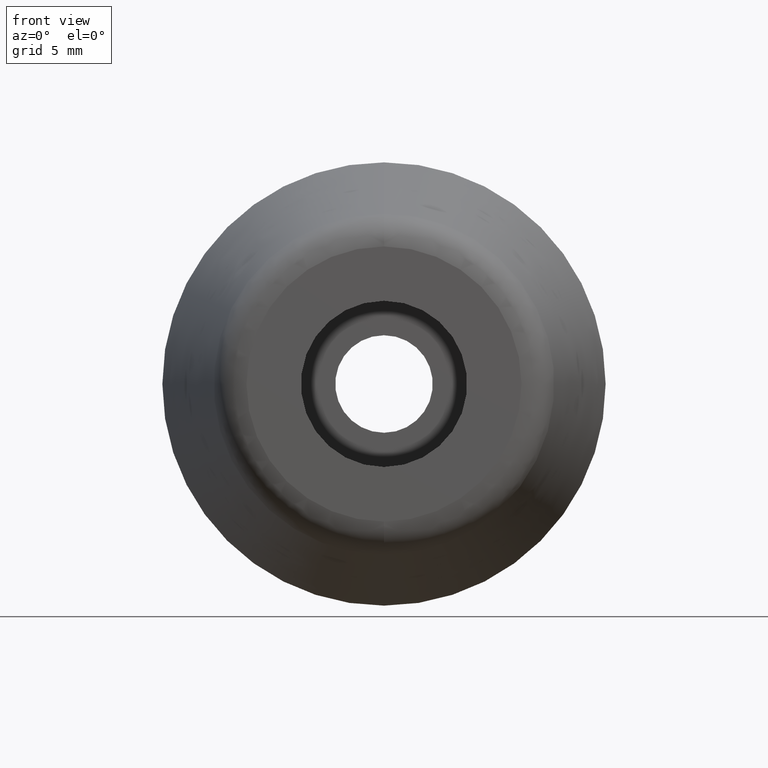
[diagram: clean part render]
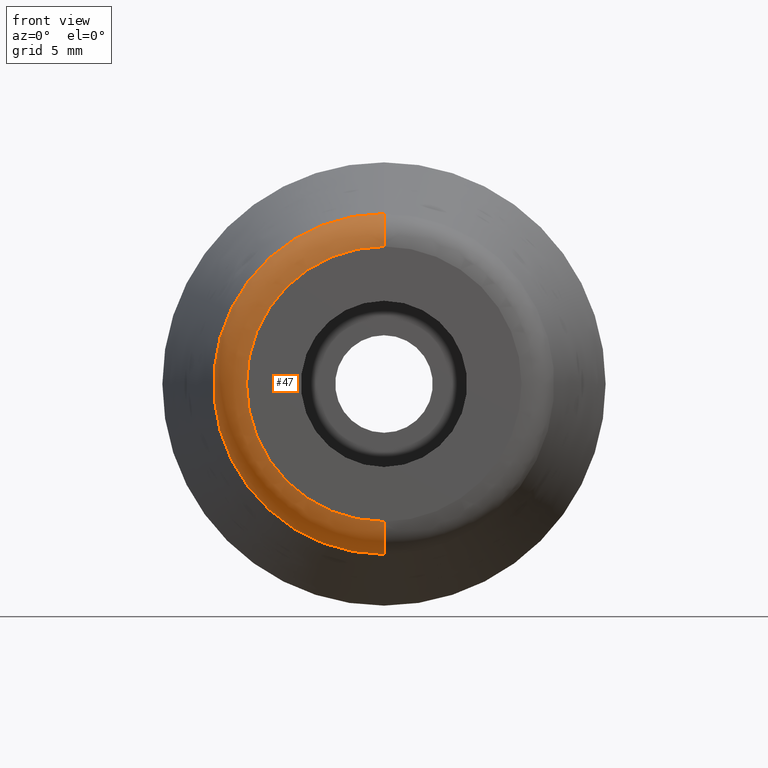
[diagram: same view with one face highlighted and labeled with its STEP entity id]
A machine part, front view. The second image highlights one B-rep face of the part: STEP entity #47.
In plain terms, the highlighted face is a freeform B-spline surface patch.
Its self-contained STEP definition (entity closure, byte-faithful):
#47=ADVANCED_FACE('',(#125),#124,.T.);
#124=( BOUNDED_SURFACE() B_SPLINE_SURFACE( 2,2,((#202,#203,#204,#205,#206),(#207,#208,#209,#210,#211),(#212,#213,#214,#215,#216),(#217,#218,#219,#220,#221),(#222,#223,#224,#225,#226)), .UNSPECIFIED.,.F.,.F.,.F.) B_SPLINE_SURFACE_WITH_KNOTS((3,2,3),(3,2,3),(0.00000000000E+00,5.00000000000E-01,1.00000000000E+00),(0.00000000000E+00,5.00000000000E-01,1.00000000000E+00), .UNSPECIFIED. ) GEOMETRIC_REPRESENTATION_ITEM() RATIONAL_B_SPLINE_SURFACE(((1.00000000000E+00,7.56800498974E-01,1.00000000000E+00,7.56800498974E-01,1.00000000000E+00),(7.07106781187E-01,5.35138764830E-01,7.07106781187E-01,5.35138764830E-01,7.07106781187E-01),(1.00000000000E+00,7.56800498974E-01,1.00000000000E+00,7.56800498974E-01,1.00000000000E+00),(7.07106781187E-01,5.35138764830E-01,7.07106781187E-01,5.35138764830E-01,7.07106781187E-01),(1.00000000000E+00,7.56800498974E-01,1.00000000000E+00,7.56800498974E-01,1.00000000000E+00))) REPRESENTATION_ITEM('') SURFACE() );
#125=FACE_OUTER_BOUND('',#227,.T.);
#202=CARTESIAN_POINT('',(9.46680299883E-15,-1.57182409857E+01,7.68849397268E+00));
#203=CARTESIAN_POINT('',(9.48988609049E-15,-1.70000000000E+01,7.50000000000E+00));
#204=CARTESIAN_POINT('',(9.64853932134E-15,-1.70000000000E+01,6.20445526964E+00));
#205=CARTESIAN_POINT('',(9.80719255219E-15,-1.70000000000E+01,4.90891053928E+00));
#206=CARTESIAN_POINT('',(9.83027564385E-15,-1.57182409857E+01,4.72041656659E+00));
#207=CARTESIAN_POINT('',(-7.68849397268E+00,-1.57182409857E+01,7.68849397268E+00));
#208=CARTESIAN_POINT('',(-7.50000000000E+00,-1.70000000000E+01,7.50000000000E+00));
#209=CARTESIAN_POINT('',(-6.20445526964E+00,-1.70000000000E+01,6.20445526964E+00));
#210=CARTESIAN_POINT('',(-4.90891053928E+00,-1.70000000000E+01,4.90891053928E+00));
#211=CARTESIAN_POINT('',(-4.72041656659E+00,-1.57182409857E+01,4.72041656659E+00));
#212=CARTESIAN_POINT('',(-7.68849397268E+00,-1.57182409857E+01,-4.70753380332E-16));
#213=CARTESIAN_POINT('',(-7.50000000000E+00,-1.70000000000E+01,-4.59212215687E-16));
#214=CARTESIAN_POINT('',(-6.20445526964E+00,-1.70000000000E+01,-3.79888220200E-16));
#215=CARTESIAN_POINT('',(-4.90891053928E+00,-1.70000000000E+01,-3.00564224713E-16));
#216=CARTESIAN_POINT('',(-4.72041656659E+00,-1.57182409857E+01,-2.89023060068E-16));
#217=CARTESIAN_POINT('',(-7.68849397268E+00,-1.57182409857E+01,-7.68849397268E+00));
#218=CARTESIAN_POINT('',(-7.50000000000E+00,-1.70000000000E+01,-7.50000000000E+00));
#219=CARTESIAN_POINT('',(-6.20445526964E+00,-1.70000000000E+01,-6.20445526964E+00));
#220=CARTESIAN_POINT('',(-4.90891053928E+00,-1.70000000000E+01,-4.90891053928E+00));
#221=CARTESIAN_POINT('',(-4.72041656659E+00,-1.57182409857E+01,-4.72041656659E+00));
#222=CARTESIAN_POINT('',(1.04083097595E-14,-1.57182409857E+01,-7.68849397268E+00));
#223=CARTESIAN_POINT('',(1.04083105219E-14,-1.70000000000E+01,-7.50000000000E+00));
#224=CARTESIAN_POINT('',(1.04083157617E-14,-1.70000000000E+01,-6.20445526964E+00));
#225=CARTESIAN_POINT('',(1.04083210016E-14,-1.70000000000E+01,-4.90891053928E+00));
#226=CARTESIAN_POINT('',(1.04083217640E-14,-1.57182409857E+01,-4.72041656659E+00));
#227=EDGE_LOOP('',(#304,#305,#306,#307));
#304=ORIENTED_EDGE('',*,*,#325,.F.);
#305=ORIENTED_EDGE('',*,*,#336,.F.);
#306=ORIENTED_EDGE('',*,*,#337,.T.);
#307=ORIENTED_EDGE('',*,*,#338,.T.);
#325=EDGE_CURVE('',#371,#370,#378,.T.);
#336=EDGE_CURVE('',#450,#371,#451,.T.);
#337=EDGE_CURVE('',#450,#457,#458,.T.);
#338=EDGE_CURVE('',#457,#370,#464,.T.);
#370=VERTEX_POINT('',#508);
#371=VERTEX_POINT('',#509);
#378=CIRCLE('',#517,6.20445526964E+00);
#450=VERTEX_POINT('',#556);
#451=(BOUNDED_CURVE() B_SPLINE_CURVE(2,(#557,#558,#559),.UNSPECIFIED.,.F.,.F.) B_SPLINE_CURVE_WITH_KNOTS((3,3),(0.00000000000E+00,5.00000000000E-01),.UNSPECIFIED.) CURVE() GEOMETRIC_REPRESENTATION_ITEM() RATIONAL_B_SPLINE_CURVE((1.00000000000E+00,7.56800498974E-01,1.00000000000E+00)) REPRESENTATION_ITEM('') );
#457=VERTEX_POINT('',#560);
#458=CIRCLE('',#564,7.68849397268E+00);
#464=(BOUNDED_CURVE() B_SPLINE_CURVE(3,(#565,#566,#567,#568,#569),.UNSPECIFIED.,.F.,.F.) B_SPLINE_CURVE_WITH_KNOTS((4,1,4),(0.00000000000E+00,2.50000002718E-01,5.00000004832E-01),.UNSPECIFIED.) CURVE() GEOMETRIC_REPRESENTATION_ITEM() RATIONAL_B_SPLINE_CURVE((1.00000000000E+00,1.00000000000E+00,1.00000000000E+00,1.00000000000E+00,1.00000000000E+00)) REPRESENTATION_ITEM('') );
#508=CARTESIAN_POINT('',(1.06581410364E-14,-1.70000000000E+01,-6.20445526964E+00));
#509=CARTESIAN_POINT('',(1.03620815632E-14,-1.70000000000E+01,6.20445526964E+00));
#514=CARTESIAN_POINT('',(1.06581410364E-14,-1.70000000000E+01,0.00000000000E+00));
#515=DIRECTION('',(0.00000000000E+00,-1.00000000000E+00,-0.00000000000E+00));
#516=DIRECTION('',(-1.22460635382E-16,0.00000000000E+00,-1.00000000000E+00));
#517=AXIS2_PLACEMENT_3D('',#514,#515,#516);
#556=CARTESIAN_POINT('',(1.15463194561E-14,-1.57182409857E+01,7.68849397268E+00));
#557=CARTESIAN_POINT('',(9.46680299883E-15,-1.57182409857E+01,7.68849397268E+00));
#558=CARTESIAN_POINT('',(9.48988609049E-15,-1.70000000000E+01,7.50000000000E+00));
#559=CARTESIAN_POINT('',(9.64853932134E-15,-1.70000000000E+01,6.20445526964E+00));
#560=CARTESIAN_POINT('',(1.06581410364E-14,-1.57182409857E+01,-7.68849397268E+00));
#561=CARTESIAN_POINT('',(1.06581410364E-14,-1.57182409857E+01,0.00000000000E+00));
#562=DIRECTION('',(0.00000000000E+00,-1.00000000000E+00,-0.00000000000E+00));
#563=DIRECTION('',(-1.22460635382E-16,0.00000000000E+00,-1.00000000000E+00));
#564=AXIS2_PLACEMENT_3D('',#561,#562,#563);
#565=CARTESIAN_POINT('',(1.18423789293E-14,-1.57182409857E+01,-7.68849397268E+00));
#566=CARTESIAN_POINT('',(1.17061268447E-14,-1.60682932839E+01,-7.63928169377E+00));
#567=CARTESIAN_POINT('',(1.14892437149E-14,-1.67351339217E+01,-7.27123608428E+00));
#568=CARTESIAN_POINT('',(1.14904042907E-14,-1.70022418925E+01,-6.55794277972E+00));
#569=CARTESIAN_POINT('',(1.15463194560E-14,-1.70000000000E+01,-6.20445525069E+00));